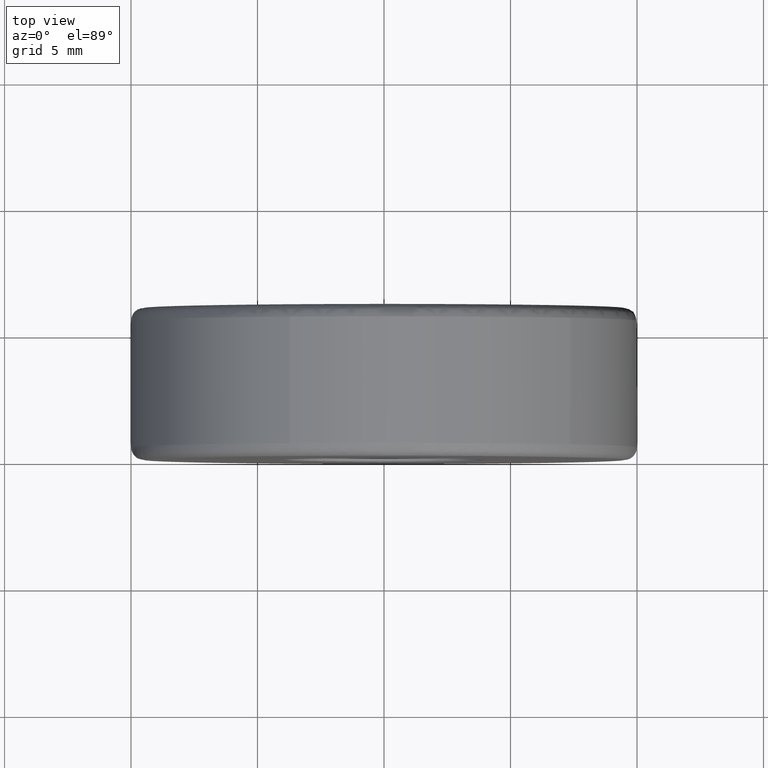
[diagram: clean part render]
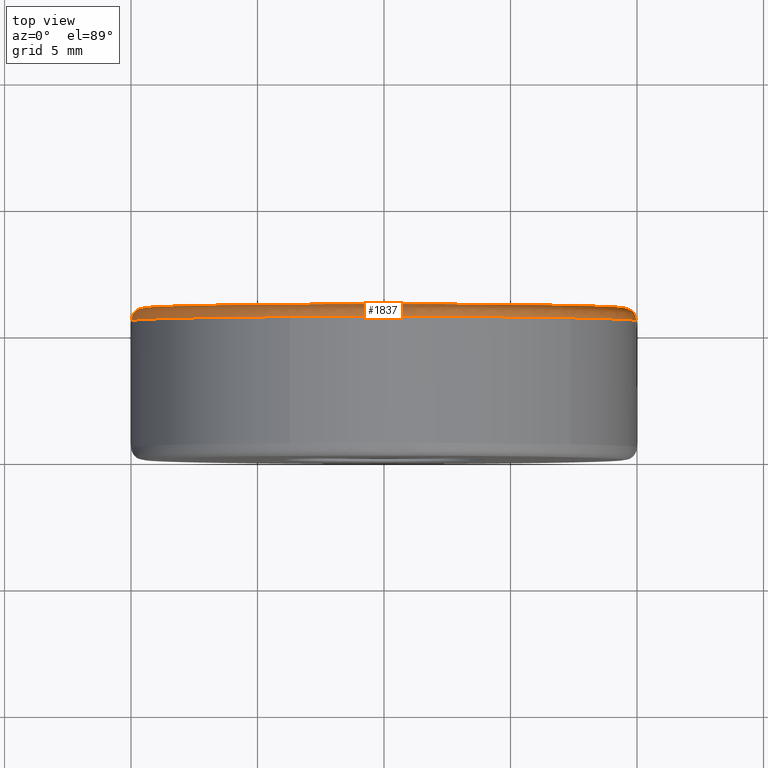
[diagram: same view with one face highlighted and labeled with its STEP entity id]
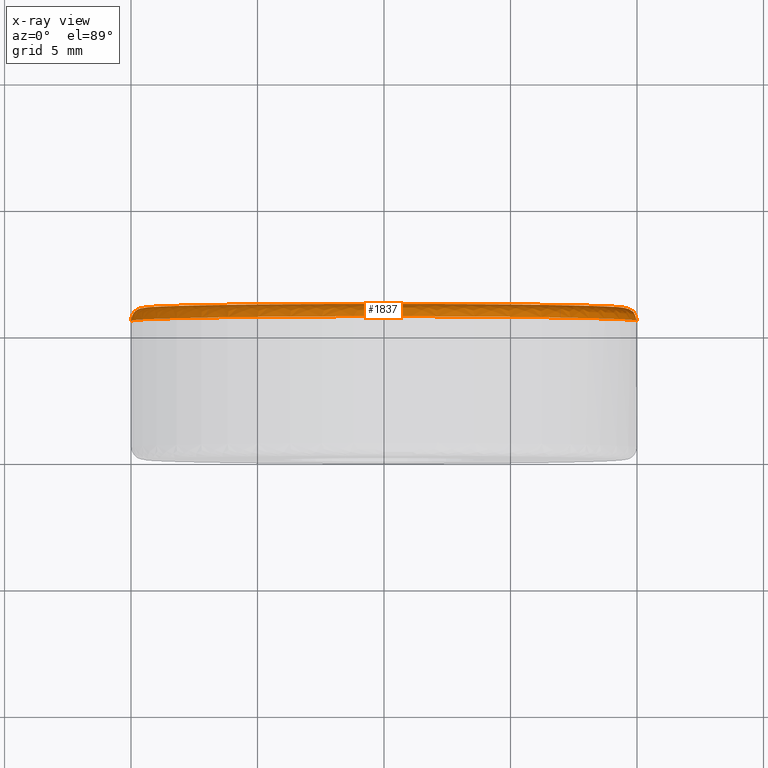
[diagram: x-ray of the same camera — body ghosted, the highlighted face saturated]
A machine part, top view. The second image highlights one B-rep face of the part: STEP entity #1837.
The next image is the same camera in x-ray: the body ghosted, the highlighted face saturated — about 0% of this face is hidden behind the body in this view.
In plain terms, the highlighted face is a freeform B-spline surface patch.
Its self-contained STEP definition (entity closure, byte-faithful):
#1203=CARTESIAN_POINT('',(-3.715388841877617,5.500000000006068,9.284173940292972));
#1204=VERTEX_POINT('',#1203);
#1210=CARTESIAN_POINT('',(-9.999210442038091,5.500000000083688,0.125660398838791));
#1211=VERTEX_POINT('',#1210);
#1212=CARTESIAN_POINT('',(-3.715388841877618,5.500000000006068,9.284173940292972));
#1213=CARTESIAN_POINT('',(-9.915295306013096,5.500000000027096,6.803063240981397));
#1214=CARTESIAN_POINT('',(-9.999210442038091,5.500000000083689,0.125660398838791));
#1222=(BOUNDED_CURVE()B_SPLINE_CURVE(2,(#1212,#1213,#1214),.UNSPECIFIED.,.F.,.U.)B_SPLINE_CURVE_WITH_KNOTS((3,3),(0.563083109660825,0.747784295921543),.UNSPECIFIED.)CURVE()GEOMETRIC_REPRESENTATION_ITEM()RATIONAL_B_SPLINE_CURVE((0.889485074319432,0.782299061388041,0.994854295643585))REPRESENTATION_ITEM(''));
#1223=EDGE_CURVE('',#1204,#1211,#1222,.T.);
#1242=CARTESIAN_POINT('',(9.975656738404027,5.500000000083660,-0.697332515758636));
#1243=VERTEX_POINT('',#1242);
#1257=CARTESIAN_POINT('',(7.372773731044375,5.500000000000000,6.755901680073629));
#1258=VERTEX_POINT('',#1257);
#1259=CARTESIAN_POINT('',(9.975656738404027,5.500000000083660,-0.697332515758636));
#1260=CARTESIAN_POINT('',(9.999999999999998,5.500000000000000,-0.349091158751351));
#1261=CARTESIAN_POINT('',(10.0,5.500000000000000,-1.746479E-016));
#1262=CARTESIAN_POINT('',(10.0,5.500000000000000,3.888786700063509));
#1263=CARTESIAN_POINT('',(7.372773731044375,5.500000000000000,6.755901680073629));
#1271=(BOUNDED_CURVE()B_SPLINE_CURVE(2,(#1259,#1260,#1261,#1262,#1263),.UNSPECIFIED.,.F.,.U.)B_SPLINE_CURVE_WITH_KNOTS((3,2,3),(0.237833686534989,0.250000000000000,0.368415192864190),.UNSPECIFIED.)CURVE()GEOMETRIC_REPRESENTATION_ITEM()RATIONAL_B_SPLINE_CURVE((0.972879876386759,0.985746277152558,1.0,0.861267972022367,0.853959782840026))REPRESENTATION_ITEM(''));
#1272=EDGE_CURVE('',#1243,#1258,#1271,.T.);
#1374=CARTESIAN_POINT('',(0.0,5.500000000000000,10.0));
#1375=VERTEX_POINT('',#1374);
#1376=CARTESIAN_POINT('',(7.372773731044376,5.500000000000000,6.755901680073629));
#1377=CARTESIAN_POINT('',(4.400105950153688,5.499999999999999,10.0));
#1378=CARTESIAN_POINT('',(0.0,5.500000000000000,10.0));
#1386=(BOUNDED_CURVE()B_SPLINE_CURVE(2,(#1376,#1377,#1378),.UNSPECIFIED.,.F.,.U.)B_SPLINE_CURVE_WITH_KNOTS((3,3),(0.368415192864190,0.500000000000000),.UNSPECIFIED.)CURVE()GEOMETRIC_REPRESENTATION_ITEM()RATIONAL_B_SPLINE_CURVE((0.853959782840026,0.845838809164181,1.0))REPRESENTATION_ITEM(''));
#1387=EDGE_CURVE('',#1258,#1375,#1386,.T.);
#1389=CARTESIAN_POINT('',(0.0,5.500000000000000,10.0));
#1390=CARTESIAN_POINT('',(-1.926651799232513,5.499999999999999,9.999999999999998));
#1391=CARTESIAN_POINT('',(-3.715388841877618,5.500000000006068,9.284173940292972));
#1399=(BOUNDED_CURVE()B_SPLINE_CURVE(2,(#1389,#1390,#1391),.UNSPECIFIED.,.F.,.U.)B_SPLINE_CURVE_WITH_KNOTS((3,3),(0.500000000000000,0.563083109660825),.UNSPECIFIED.)CURVE()GEOMETRIC_REPRESENTATION_ITEM()RATIONAL_B_SPLINE_CURVE((1.0,0.926093539834716,0.889485074319432))REPRESENTATION_ITEM(''));
#1400=EDGE_CURVE('',#1375,#1204,#1399,.T.);
#1742=CARTESIAN_POINT('',(9.442189561999971,5.998789650647996,-0.660040812385438));
#1743=CARTESIAN_POINT('',(9.461079628249182,5.998789650647995,-0.389809664527841));
#1744=CARTESIAN_POINT('',(9.464483650117263,5.998789650647996,-0.118940470062219));
#1745=CARTESIAN_POINT('',(9.583424120179480,5.998789650647993,9.345543180055042));
#1746=CARTESIAN_POINT('',(0.118940470062219,5.998789650647996,9.464483650117263));
#1747=CARTESIAN_POINT('',(-9.345543180055042,5.998789650647993,9.583424120179480));
#1748=CARTESIAN_POINT('',(-9.464483650117263,5.998789650647996,0.118940470062220));
#1749=CARTESIAN_POINT('',(10.014331044548777,6.038769107780077,-0.700035426607198));
#1750=CARTESIAN_POINT('',(10.034365738369619,6.038769107780075,-0.413429851128667));
#1751=CARTESIAN_POINT('',(10.037976024060885,6.038769107780079,-0.126147567148081));
#1752=CARTESIAN_POINT('',(10.164123591208970,6.038769107780077,9.911828456912806));
#1753=CARTESIAN_POINT('',(0.126147567148082,6.038769107780079,10.037976024060885));
#1754=CARTESIAN_POINT('',(-9.911828456912803,6.038769107780077,10.164123591208970));
#1755=CARTESIAN_POINT('',(-10.037976024060885,6.038769107780079,0.126147567148082));
#1756=CARTESIAN_POINT('',(9.974449403837058,5.465231415227493,-0.697247565766047));
#1757=CARTESIAN_POINT('',(9.994404310355368,5.465231415227493,-0.411783384608950));
#1758=CARTESIAN_POINT('',(9.998000218239849,5.465231415227494,-0.125645189912170));
#1759=CARTESIAN_POINT('',(10.123645408152019,5.465231415227491,9.872355028327679));
#1760=CARTESIAN_POINT('',(0.125645189912171,5.465231415227494,9.998000218239849));
#1761=CARTESIAN_POINT('',(-9.872355028327677,5.465231415227491,10.123645408152019));
#1762=CARTESIAN_POINT('',(-9.998000218239849,5.465231415227494,0.125645189912171));
#1770=(BOUNDED_SURFACE()B_SPLINE_SURFACE(2,2,((#1742,#1749,#1756),(#1743,#1750,#1757),(#1744,#1751,#1758),(#1745,#1752,#1759),(#1746,#1753,#1760),(#1747,#1754,#1761),(#1748,#1755,#1762)),.UNSPECIFIED.,.F.,.F.,.U.)B_SPLINE_SURFACE_WITH_KNOTS((3,2,2,3),(3,3),(0.0,0.662660854922714,17.229198027071590,33.795735199220459),(0.0,0.911187549789907),.UNSPECIFIED.)GEOMETRIC_REPRESENTATION_ITEM()RATIONAL_B_SPLINE_SURFACE(((0.895730113977756,0.587800021642587,0.895729761955472),(0.905606875782307,0.594281394448835,0.905606519878451),(0.916342485549142,0.601326364306183,0.916342125426188),(0.647951985421135,0.425201949907154,0.647951730775751),(0.916342485549142,0.601326364306183,0.916342125426188),(0.647951985421135,0.425201949907154,0.647951730775751),(0.916342485549142,0.601326364306183,0.916342125426188)))REPRESENTATION_ITEM('')SURFACE());
#1771=ORIENTED_EDGE('',*,*,#1387,.F.);
#1772=ORIENTED_EDGE('',*,*,#1272,.F.);
#1773=CARTESIAN_POINT('',(9.476873902700479,6.0,-0.662465890081167));
#1774=VERTEX_POINT('',#1773);
#1775=CARTESIAN_POINT('',(9.476873902700479,5.999999999999999,-0.662465890081167));
#1776=CARTESIAN_POINT('',(9.975656738237408,5.999999997557210,-0.697332515742746));
#1777=CARTESIAN_POINT('',(9.975656738404027,5.500000000083660,-0.697332515758636));
#1785=(BOUNDED_CURVE()B_SPLINE_CURVE(2,(#1775,#1776,#1777),.UNSPECIFIED.,.F.,.U.)B_SPLINE_CURVE_WITH_KNOTS((3,3),(-1.734750786581825,-0.265249208689325),.UNSPECIFIED.)CURVE()GEOMETRIC_REPRESENTATION_ITEM()RATIONAL_B_SPLINE_CURVE((0.869031710116625,0.614498217472698,0.869031711754800))REPRESENTATION_ITEM(''));
#1786=EDGE_CURVE('',#1774,#1243,#1785,.T.);
#1787=ORIENTED_EDGE('',*,*,#1786,.F.);
#1788=CARTESIAN_POINT('',(0.0,6.0,9.500000000000000));
#1789=VERTEX_POINT('',#1788);
#1790=CARTESIAN_POINT('',(9.476873902700479,6.000000000000001,-0.662465890081167));
#1791=CARTESIAN_POINT('',(9.500000000000000,6.000000000000001,-0.331636600839167));
#1792=CARTESIAN_POINT('',(9.500000000000000,6.0,-1.746479E-016));
#1793=CARTESIAN_POINT('',(9.500000000000000,6.0,9.500000000000000));
#1794=CARTESIAN_POINT('',(0.0,6.0,9.500000000000000));
#1802=(BOUNDED_CURVE()B_SPLINE_CURVE(2,(#1790,#1791,#1792,#1793,#1794),.UNSPECIFIED.,.F.,.U.)B_SPLINE_CURVE_WITH_KNOTS((3,2,3),(0.237833686534071,0.250000000000000,0.500000000000000),.UNSPECIFIED.)CURVE()GEOMETRIC_REPRESENTATION_ITEM()RATIONAL_B_SPLINE_CURVE((0.972879876384818,0.985746277151483,1.0,0.707106781186548,1.0))REPRESENTATION_ITEM(''));
#1803=EDGE_CURVE('',#1774,#1789,#1802,.T.);
#1804=ORIENTED_EDGE('',*,*,#1803,.T.);
#1805=CARTESIAN_POINT('',(-9.499249921251648,6.0,0.119377378944356));
#1806=VERTEX_POINT('',#1805);
#1807=CARTESIAN_POINT('',(0.0,6.0,9.500000000000000));
#1808=CARTESIAN_POINT('',(-9.381363334048462,6.0,9.500000000000000));
#1809=CARTESIAN_POINT('',(-9.499249921251648,5.999999999999999,0.119377378944356));
#1817=(BOUNDED_CURVE()B_SPLINE_CURVE(2,(#1807,#1808,#1809),.UNSPECIFIED.,.F.,.U.)B_SPLINE_CURVE_WITH_KNOTS((3,3),(0.500000000000000,0.747784295920397),.UNSPECIFIED.)CURVE()GEOMETRIC_REPRESENTATION_ITEM()RATIONAL_B_SPLINE_CURVE((1.0,0.709702639985800,0.994854295640948))REPRESENTATION_ITEM(''));
#1818=EDGE_CURVE('',#1789,#1806,#1817,.T.);
#1819=ORIENTED_EDGE('',*,*,#1818,.T.);
#1820=CARTESIAN_POINT('',(-9.499249921251646,6.0,0.119377378944356));
#1821=CARTESIAN_POINT('',(-9.999210441870796,5.999999997368091,0.125660398831416));
#1822=CARTESIAN_POINT('',(-9.999210442038091,5.500000000083688,0.125660398838791));
#1830=(BOUNDED_CURVE()B_SPLINE_CURVE(2,(#1820,#1821,#1822),.UNSPECIFIED.,.F.,.U.)B_SPLINE_CURVE_WITH_KNOTS((3,3),(-1.734750786188800,-0.265249208689435),.UNSPECIFIED.)CURVE()GEOMETRIC_REPRESENTATION_ITEM()RATIONAL_B_SPLINE_CURVE((0.889029721638051,0.628638947248134,0.889029723453171))REPRESENTATION_ITEM(''));
#1831=EDGE_CURVE('',#1806,#1211,#1830,.T.);
#1832=ORIENTED_EDGE('',*,*,#1831,.T.);
#1833=ORIENTED_EDGE('',*,*,#1223,.F.);
#1834=ORIENTED_EDGE('',*,*,#1400,.F.);
#1835=EDGE_LOOP('',(#1771,#1772,#1787,#1804,#1819,#1832,#1833,#1834));
#1836=FACE_OUTER_BOUND('',#1835,.T.);
#1837=ADVANCED_FACE('',(#1836),#1770,.T.);